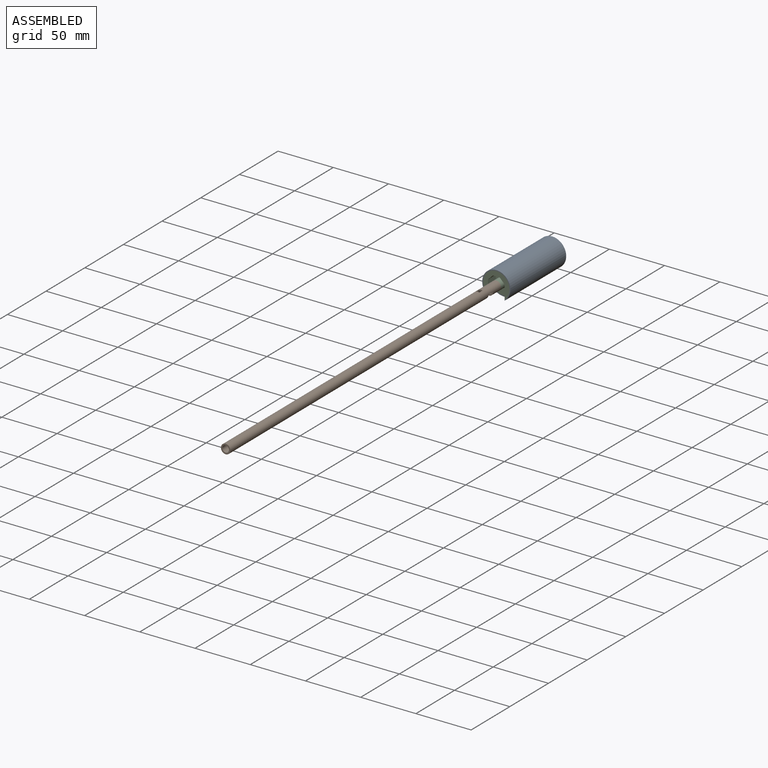
[diagram: assembled view]
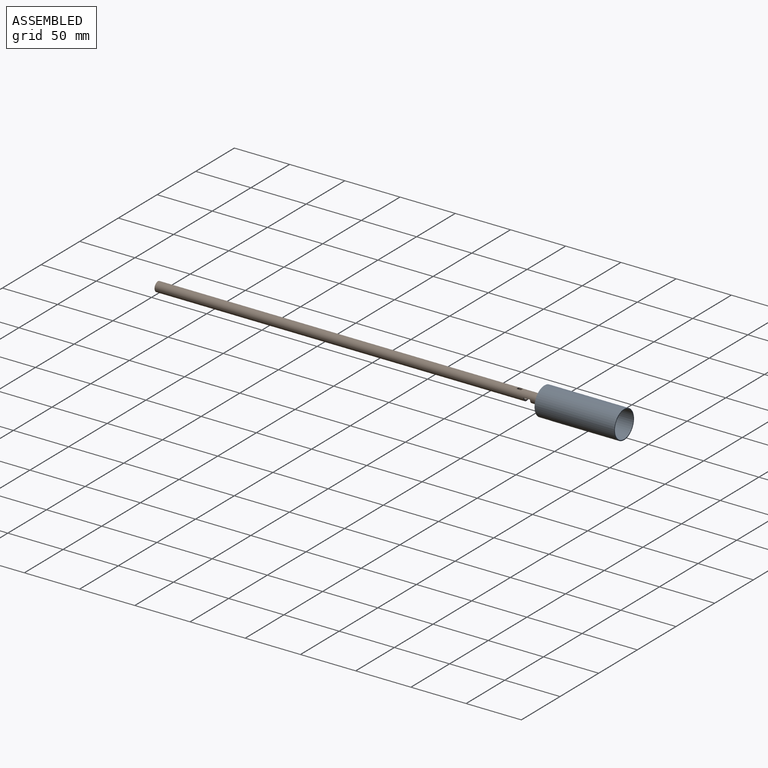
[diagram: assembled view, second angle]
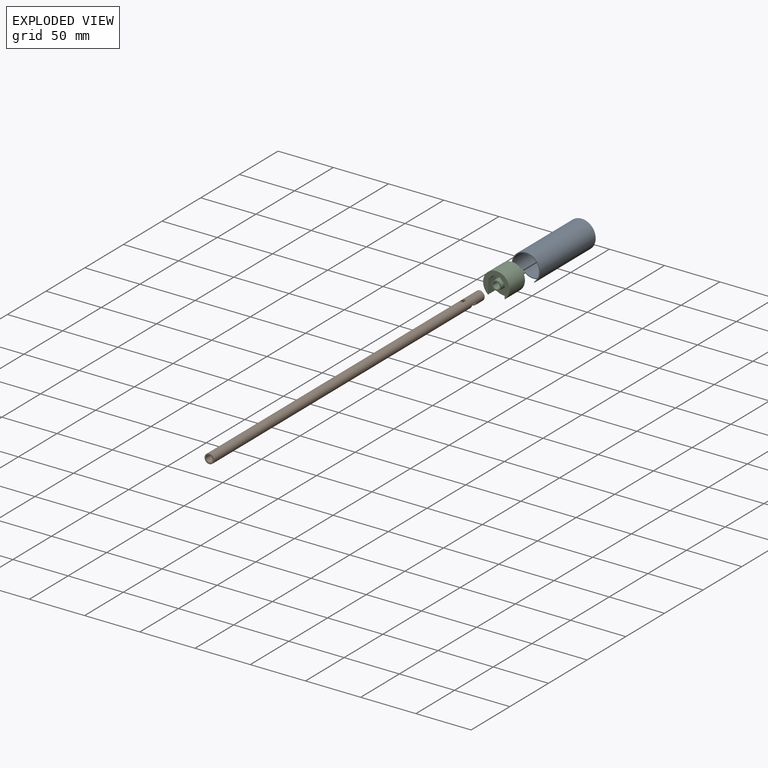
[diagram: exploded view]
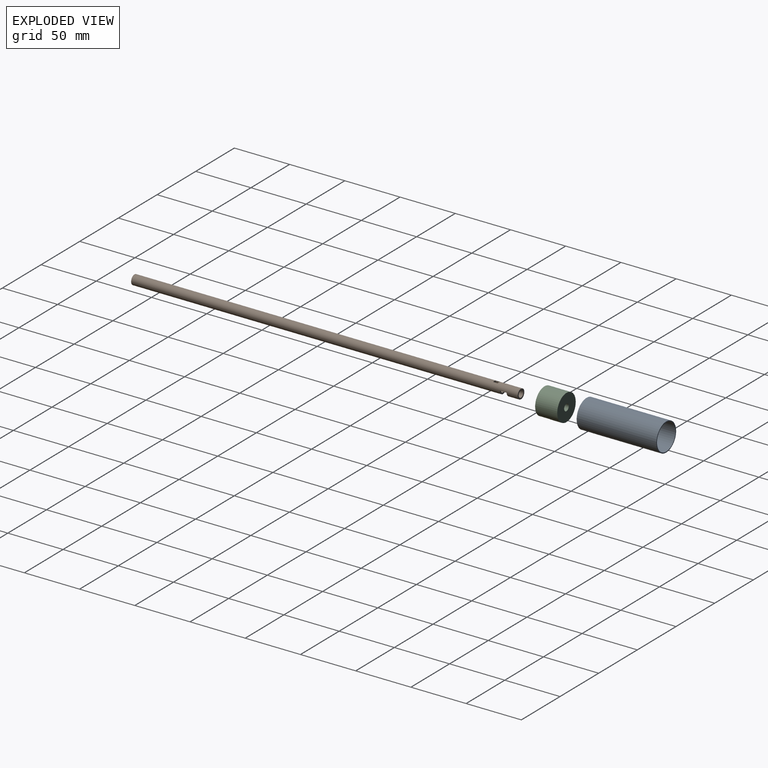
[diagram: exploded view, second angle]
ASSEMBLY  parts=3 mates=2
PART A: 7 faces, bbox 25.5x72.2x25.5 mm
  f0: cylinder r=12.75mm len=72.2mm, axis (0,-1,0), area 5623.6mm2, adj f2,f3,f4,f5,f6
  f1: cylinder r=11.95mm len=72.2mm, axis (0,-1,0), area 5258.9mm2, adj f2,f3,f4,f5,f6
  f2: plane 25.5x25.5mm, normal (0,1,0), area 62.1mm2, adj f0,f1
  f3: plane 25.5x23.06mm, normal (0,-1,0), area 49.2mm2, adj f0,f1,f4,f5
  f4: plane 10x1.01mm, normal (1,0,0), area 10.1mm2, adj f0,f1,f3,f6
  f5: plane 10x1.01mm, normal (-1,0,0), area 10.1mm2, adj f0,f1,f3,f6
  f6: plane 15x3.45mm, normal (0,-1,0), area 12.9mm2, adj f0,f1,f4,f5
PART B: 12 faces, bbox 8.6x350x8.6 mm
  f0: cylinder r=4.3mm len=350mm, axis (0,1,0), area 9360.2mm2, adj f2,f3,f4,f5,f6,f7,f8,f9
  f1: cylinder r=3mm len=350mm, axis (0,1,0), area 6526.3mm2, adj f2,f3,f4,f5,f6,f7,f8,f9
  f2: plane 8.6x8.6mm, normal (0,-1,0), area 29.8mm2, adj f0,f1
  f3: plane 8.6x8.6mm, normal (0,1,0), area 29.8mm2, adj f0,f1
  f4: plane 8.6x4.3mm, normal (0,-1,0), area 14.9mm2, adj f0,f1,f5,f7
  f5: plane 6.2x1.3mm, normal (0,0,-1), area 8.1mm2, adj f0,f1,f4,f6
  f6: plane 8.6x4.3mm, normal (0,1,0), area 14.9mm2, adj f0,f1,f5,f7
  f7: plane 6.2x1.3mm, normal (0,0,-1), area 8.1mm2, adj f0,f1,f4,f6
  f8: plane 3x1.7mm, normal (0,-1,0), area 4mm2, adj f0,f1,f10,f11
  f9: plane 3x1.7mm, normal (0,1,0), area 4mm2, adj f0,f1,f10,f11
  f10: plane 4x1.43mm, normal (-1,0,0), area 5.7mm2, adj f0,f1,f8,f9
  f11: plane 4x1.43mm, normal (1,0,0), area 5.7mm2, adj f0,f1,f8,f9
PART C: 12 faces, bbox 23.9x20x23.9 mm
  f0: cylinder r=11.95mm len=23.9mm, axis (0,-1,0), area 1339.5mm2, adj f1,f2,f3,f4,f8
  f1: plane 23.9x23.9mm, normal (0,1,0), area 420.4mm2, adj f0,f10
  f2: plane 19.45x15mm, normal (0,-1,0), area 201.8mm2, adj f0,f3,f4,f5,f6,f7,f9
  f3: plane 12.41x10mm, normal (-1,0,0), area 124.1mm2, adj f0,f2,f7,f8
  f4: plane 12.41x10mm, normal (1,0,0), area 124.1mm2, adj f0,f2,f5,f8
  f5: plane 10x4.39mm, normal (0.71,0,-0.71), area 62.1mm2, adj f2,f4,f6,f8
  f6: plane 10x6.21mm, normal (0,0,-1), area 62.1mm2, adj f2,f5,f7,f8
  f7: plane 10x4.39mm, normal (-0.71,0,-0.71), area 62.1mm2, adj f2,f3,f6,f8
  f8: plane 23.9x21.25mm, normal (0,-1,0), area 188.8mm2, adj f0,f3,f4,f5,f6,f7
  f9: cylinder r=4.3mm len=10mm, axis (0,-1,0), area 270.2mm2, adj f2,f11
  f10: cylinder r=3mm len=20mm, axis (0,-1,0), area 377mm2, adj f1,f11
  f11: plane 8.6x8.6mm, normal (0,-1,0), area 29.8mm2, adj f9,f10
PLACE A t=(3.1,-22,18.46)mm
PLACE B t=(3.1,-22,18.46)mm
PLACE C t=(3.1,-22,18.46)mm
MATE fastened B.f1 <-> C.f10  axis (0,1,0) through (3.1,-22,18.46)mm
MATE fastened C.f9 <-> A.f1  axis (0,-1,0) through (3.1,-22,18.46)mm
